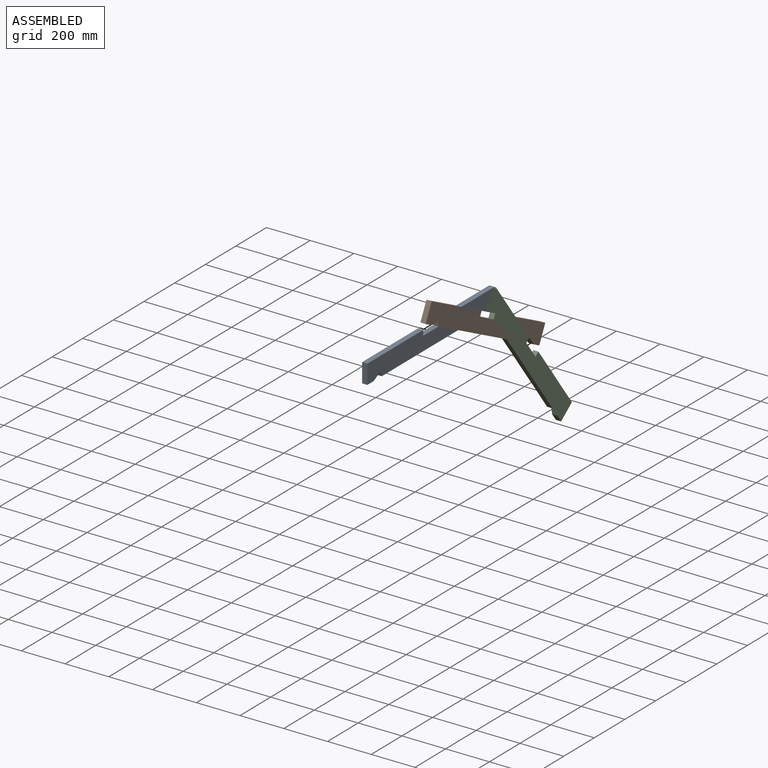
[diagram: assembled view]
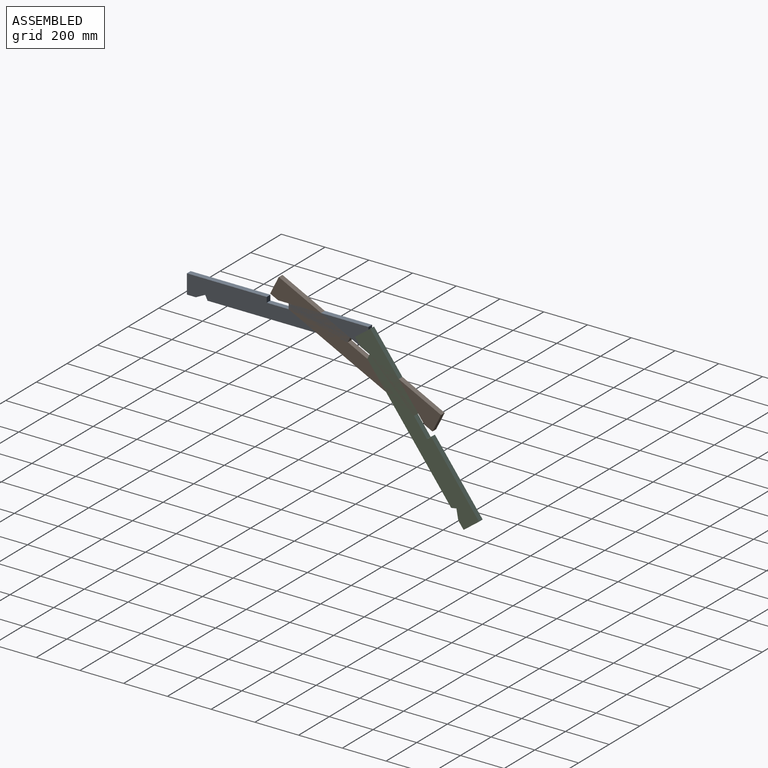
[diagram: assembled view, second angle]
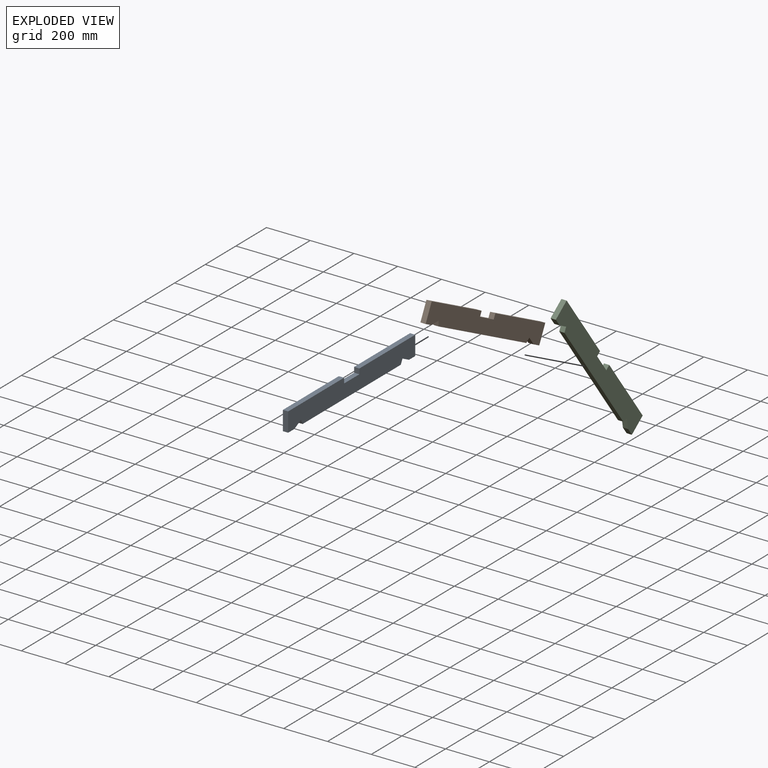
[diagram: exploded view]
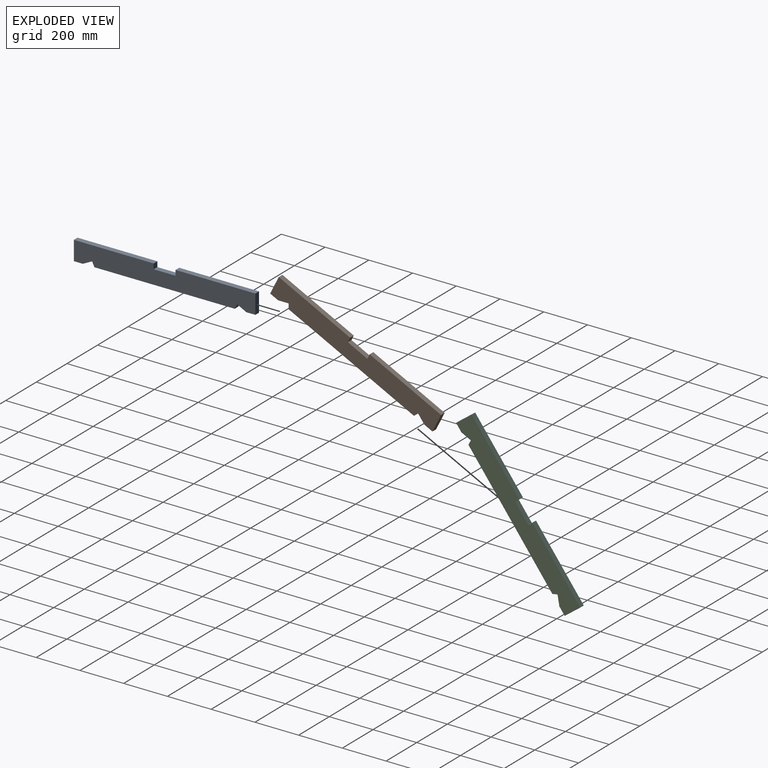
[diagram: exploded view, second angle]
ASSEMBLY  parts=3 mates=2
PART A: 16 faces, bbox 24x830x88 mm
  f0: plane 42.82x24mm, normal (0,0.45,-0.89), area 1149.5mm2, adj f1,f13,f14,f15
  f1: plane 24x21.46mm, normal (0,-0.89,-0.45), area 576.1mm2, adj f0,f2,f14,f15
  f2: plane 641.13x24mm, normal (0,0,-1), area 15387.1mm2, adj f1,f3,f14,f15
  f3: plane 24x21.46mm, normal (0,0.89,-0.45), area 576.1mm2, adj f2,f4,f14,f15
  f4: plane 42.82x24mm, normal (0,-0.45,-0.89), area 1149.5mm2, adj f3,f5,f14,f15
  f5: plane 40.86x24mm, normal (0,0,-1), area 980.6mm2, adj f4,f6,f14,f15
  f6: plane 88x24mm, normal (0,1,0), area 2112mm2, adj f5,f7,f14,f15
  f7: plane 365x24mm, normal (0,0,1), area 8760mm2, adj f6,f8,f14,f15
  f8: plane 24x24mm, normal (0,-1,0), area 576mm2, adj f7,f9,f14,f15
  f9: plane 100x24mm, normal (0,0,1), area 2400mm2, adj f8,f10,f14,f15
  f10: plane 24x24mm, normal (0,1,0), area 576mm2, adj f9,f11,f14,f15
  f11: plane 365x24mm, normal (0,0,1), area 8760mm2, adj f10,f12,f14,f15
  f12: plane 88x24mm, normal (0,-1,0), area 2112mm2, adj f11,f13,f14,f15
  f13: plane 40.86x24mm, normal (0,0,-1), area 980.6mm2, adj f0,f12,f14,f15
  f14: plane 830x88mm, normal (1,0,0), area 69490.3mm2, adj f0,f1,f2,f3,f4,f5,f6,f7
  f15: plane 830x88mm, normal (-1,0,0), area 69490.3mm2, adj f0,f1,f2,f3,f4,f5,f6,f7
PART B: same geometry as A
PART C: same geometry as A
PLACE A t=(-208.14,-73.26,26.37)mm fixed
PLACE B rot(axis=(-1,0,0),26.6deg) t=(-208.14,263.33,-53.26)mm fixed
PLACE C rot(axis=(-1,0,0),53.2deg) t=(-208.14,528.56,-275.26)mm
MATE planar B.f1 <-> A.f8  axis (0,-1,0) through (-208.14,-23.26,102.37)mm
MATE planar C.f1 <-> B.f8  axis (0,-0.89,0.45) through (-208.14,342.08,-7.72)mm
